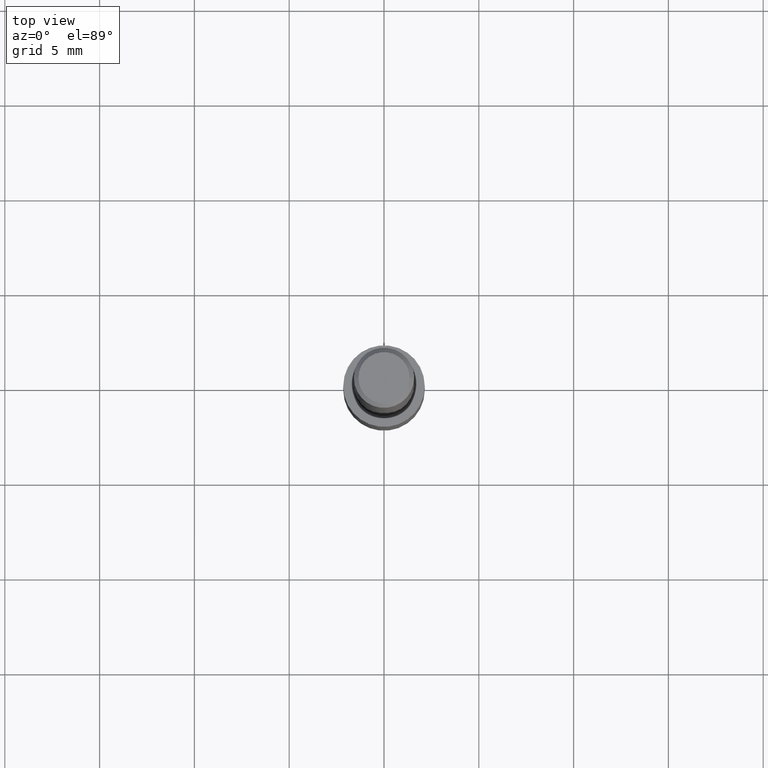
[diagram: clean part render]
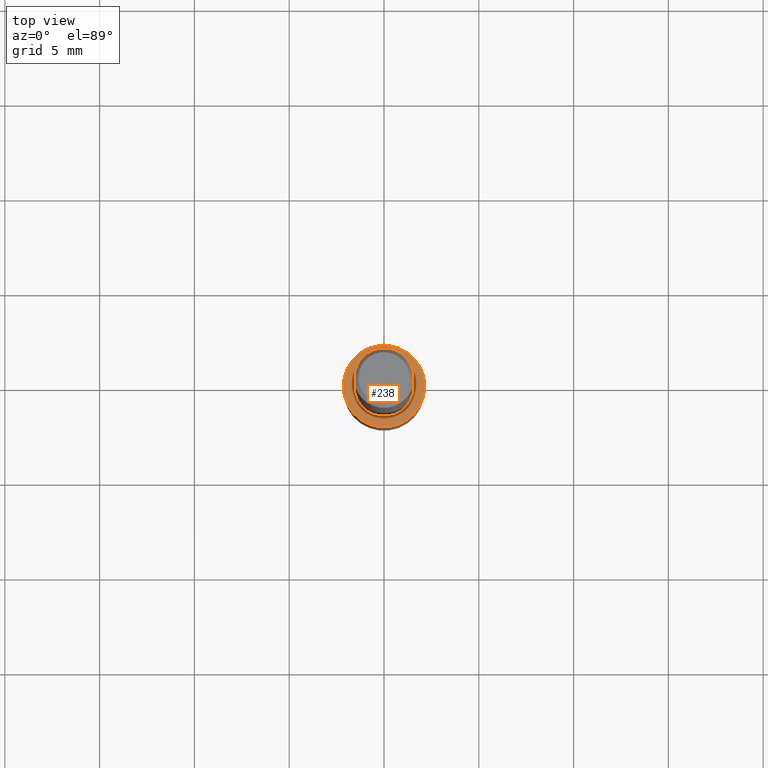
[diagram: same view with one face highlighted and labeled with its STEP entity id]
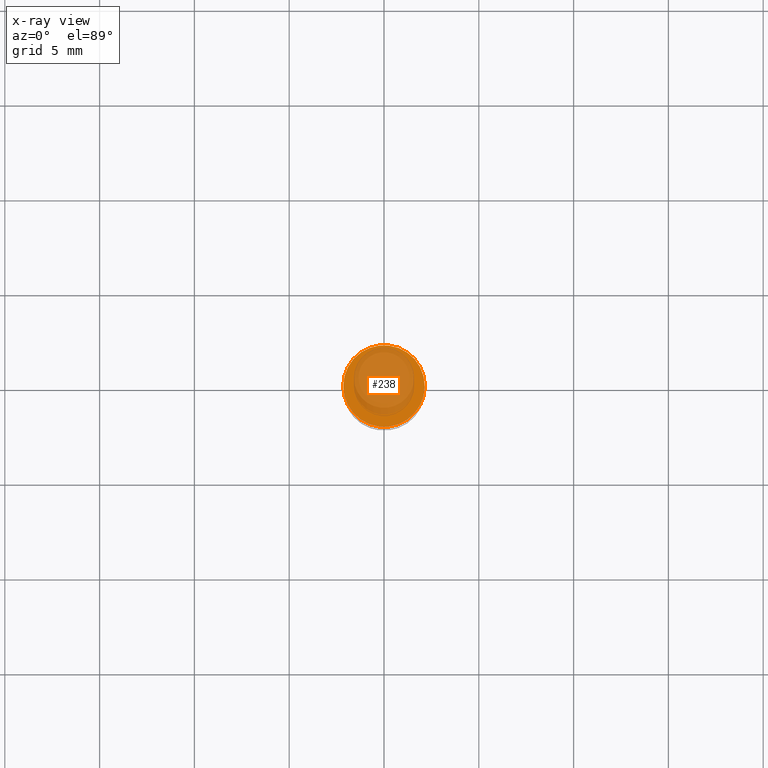
[diagram: x-ray of the same camera — body ghosted, the highlighted face saturated]
A machine part, top view. The second image highlights one B-rep face of the part: STEP entity #238.
The next image is the same camera in x-ray: the body ghosted, the highlighted face saturated — about 63% of this face is hidden behind the body in this view.
In plain terms, the highlighted planar face has unit normal (0, -0, -1).
Its self-contained STEP definition (entity closure, byte-faithful):
#3 = ORIENTED_EDGE ( 'NONE', *, *, #304, .T. ) ;
#22 = DIRECTION ( 'NONE',  ( -1.000000000000000000, 6.982962677686265922E-15, -4.876176775795935793E-29 ) ) ;
#25 = DIRECTION ( 'NONE',  ( -2.445468806185136597E-29, 3.491481338843145583E-15, 1.000000000000000000 ) ) ;
#35 = CIRCLE ( 'NONE', #42, 0.08465000000000001690 ) ;
#40 = FACE_OUTER_BOUND ( 'NONE', #276, .T. ) ;
#42 = AXIS2_PLACEMENT_3D ( 'NONE', #262, #25, #237 ) ;
#71 = DIRECTION ( 'NONE',  ( 2.438088387897960049E-29, -3.491481338843145188E-15, -1.000000000000000000 ) ) ;
#92 = DIRECTION ( 'NONE',  ( -2.445468806185136597E-29, 3.491481338843145583E-15, 1.000000000000000000 ) ) ;
#95 = DIRECTION ( 'NONE',  ( 1.000000000000000000, -6.982962677686269077E-15, 0.000000000000000000 ) ) ;
#96 = AXIS2_PLACEMENT_3D ( 'NONE', #290, #71, #22 ) ;
#112 = ORIENTED_EDGE ( 'NONE', *, *, #300, .T. ) ;
#129 = CARTESIAN_POINT ( 'NONE',  ( 0.08465000000000001690, -4.082589129509289174E-15, -1.000000000000000222 ) ) ;
#142 = VERTEX_POINT ( 'NONE', #129 ) ;
#158 = CARTESIAN_POINT ( 'NONE',  ( 2.445468806185136877E-29, -3.491481338843145977E-15, -1.000000000000000222 ) ) ;
#161 = CARTESIAN_POINT ( 'NONE',  ( -0.08465000000000001690, -3.693967725337331089E-15, -1.000000000000000222 ) ) ;
#181 = CIRCLE ( 'NONE', #289, 0.08465000000000001690 ) ;
#217 = PLANE ( 'NONE',  #96 ) ;
#237 = DIRECTION ( 'NONE',  ( 1.000000000000000000, -6.982962677686269077E-15, 0.000000000000000000 ) ) ;
#238 = ADVANCED_FACE ( 'NONE', ( #40 ), #217, .F. ) ;
#262 = CARTESIAN_POINT ( 'NONE',  ( 2.445468806185136877E-29, -3.491481338843145977E-15, -1.000000000000000222 ) ) ;
#268 = VERTEX_POINT ( 'NONE', #161 ) ;
#276 = EDGE_LOOP ( 'NONE', ( #112, #3 ) ) ;
#289 = AXIS2_PLACEMENT_3D ( 'NONE', #158, #92, #95 ) ;
#290 = CARTESIAN_POINT ( 'NONE',  ( 3.572249230335736958E-29, -1.877867639100521778E-15, -1.000000000000000222 ) ) ;
#300 = EDGE_CURVE ( 'NONE', #142, #268, #181, .T. ) ;
#304 = EDGE_CURVE ( 'NONE', #268, #142, #35, .T. ) ;